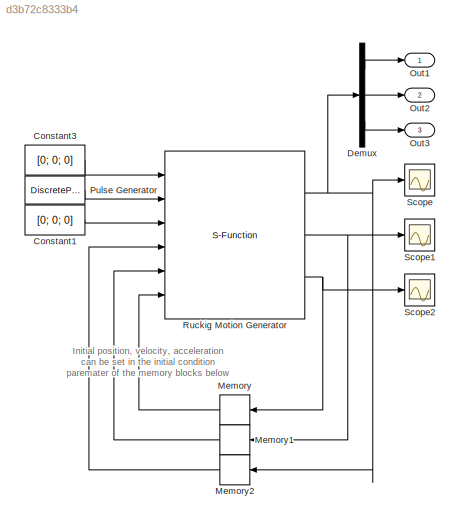
MODEL slx_d3b72c8333b4
KIND model
CONFIG AbsTol = auto
CONFIG EnableMultiTasking = on
CONFIG FixedStep = 0.01
CONFIG MaxStep = auto
CONFIG MinStep = auto
CONFIG RelTol = 1e-3
CONFIG SampleTimeConstraint = Unconstrained
CONFIG SolverName = FixedStepDiscrete
CONFIG StartTime = 0.0
CONFIG StopTime = 10
BLOCK [Constant] Constant1
  Value = [0; 0; 0]
BLOCK [Constant] Constant3
  Value = [0; 0; 0]
BLOCK [Demux] Demux
  Outputs = 3
  Ports = [1, 3]
BLOCK [Memory] Memory
  InheritSampleTime = on
  InitialCondition = [0 0 0]
BLOCK [Memory] Memory1
  InheritSampleTime = on
  InitialCondition = [0 0 0]
BLOCK [Memory] Memory2
  InheritSampleTime = on
  InitialCondition = [2 -1 1]
BLOCK [Outport] Out1
  VectorParamsAs1DForOutWhenUnconnected = off
BLOCK [Outport] Out2
  Port = 2
  VectorParamsAs1DForOutWhenUnconnected = off
BLOCK [Outport] Out3
  Port = 3
  VectorParamsAs1DForOutWhenUnconnected = off
BLOCK [DiscretePulseGenerator] Pulse Generator
  Amplitude = [150; 75; 100]
  Period = 500
  Ports = [0, 1]
  PulseWidth = 400
  SampleTime = 0.01
BLOCK [S-Function] Ruckig Motion Generator
  EnableBusSupport = off
  FunctionName = sfun_motiongen
  Parameters = ts,ndofs,vmax,amax,jmax,control,sync,duration
  Ports = [6, 3]
  SFcnIsStateOwnerBlock = off
  SFunctionDeploymentMode = off
BLOCK [Scope] Scope
  Floating = off
  NumInputPorts = 1
  Ports = [1]
  ScopeSpecificationString = Simulink.scopes.TimeScopeBlockCfg('CurrentConfiguration', extmgr.ConfigurationSet(extmgr.Configuration('Core','General UI',true,'DisplayFullSourceName',false,'ShowMainToolbar',true),extmgr.Configuration('Sources','WiredSimulink',true,'DataLogging',false,'DataLoggingVariableName','ScopeData','DataLoggingLimitDataPoints',true,'DataLoggingMaxPoints','5000','DataLoggingDecimateData',true,'DataLoggingD...<+2035ch>
BLOCK [Scope] Scope1
  Floating = off
  NumInputPorts = 1
  Ports = [1]
  ScopeSpecificationString = Simulink.scopes.TimeScopeBlockCfg('CurrentConfiguration', extmgr.ConfigurationSet(extmgr.Configuration('Core','General UI',true,'DisplayFullSourceName',false,'ShowMainToolbar',true),extmgr.Configuration('Sources','WiredSimulink',true,'DataLogging',false,'DataLoggingVariableName','ScopeData1','DataLoggingLimitDataPoints',true,'DataLoggingMaxPoints','5000','DataLoggingDecimateData',true,'DataLogging...<+2033ch>
BLOCK [Scope] Scope2
  Floating = off
  NumInputPorts = 1
  Ports = [1]
  ScopeSpecificationString = Simulink.scopes.TimeScopeBlockCfg('CurrentConfiguration', extmgr.ConfigurationSet(extmgr.Configuration('Core','General UI',true,'DisplayFullSourceName',false,'ShowMainToolbar',true),extmgr.Configuration('Sources','WiredSimulink',true,'DataLogging',false,'DataLoggingVariableName','ScopeData2','DataLoggingLimitDataPoints',true,'DataLoggingMaxPoints','5000','DataLoggingDecimateData',true,'DataLogging...<+2031ch>
ANNOTATION (root): Initial position, velocity, acceleration can be set in the initial condition paremater of the memory blocks below
LINE Constant1:1 -> Ruckig Motion Generator:3
LINE Constant3:1 -> Ruckig Motion Generator:1
LINE Demux:1 -> Out1:1
LINE Demux:2 -> Out2:1
LINE Demux:3 -> Out3:1
LINE Memory1:1 -> Ruckig Motion Generator:5
LINE Memory2:1 -> Ruckig Motion Generator:4
LINE Memory:1 -> Ruckig Motion Generator:6
LINE Pulse Generator:1 -> Ruckig Motion Generator:2
NET Ruckig Motion Generator:1 -> Demux:1, Memory2:1, Scope:1
NET Ruckig Motion Generator:2 -> Memory1:1, Scope1:1
NET Ruckig Motion Generator:3 -> Memory:1, Scope2:1
note: NET lines group one-source signal fan-out (src -> all destinations, sorted); 1:1 wires keep LINE
